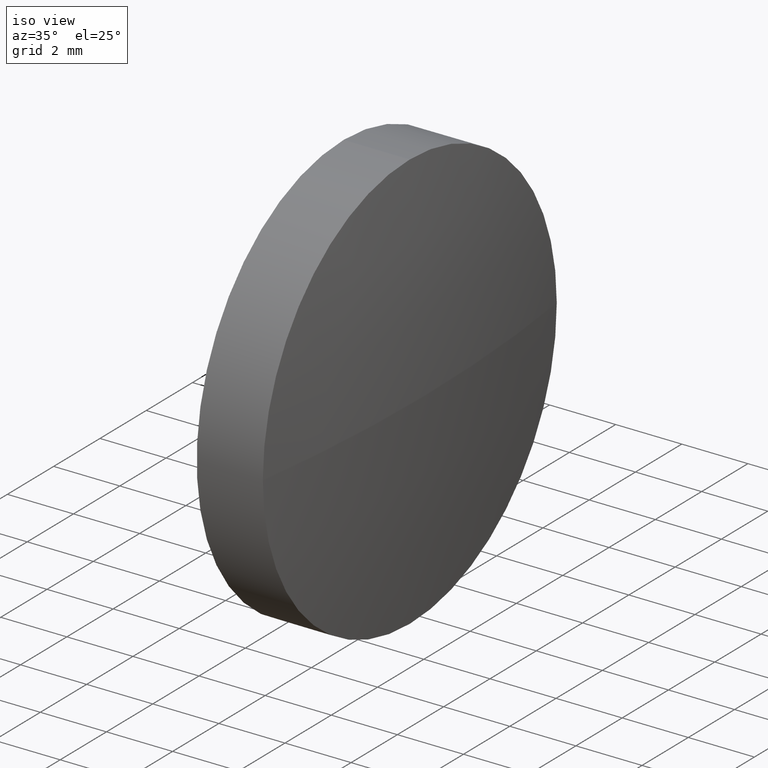
[diagram: clean part render]
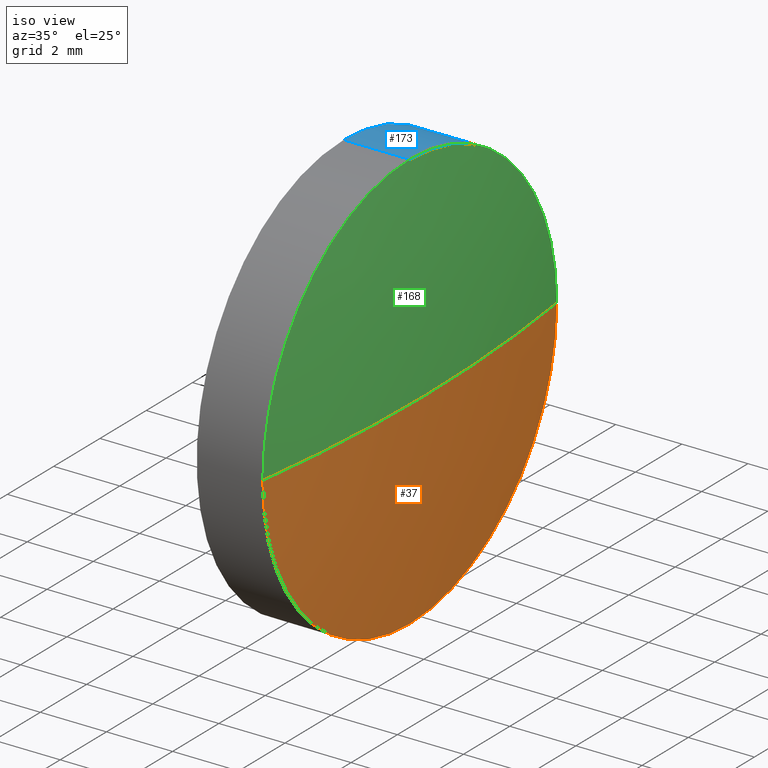
[diagram: same view with three faces highlighted in distinct colors, each labeled with its STEP entity id]
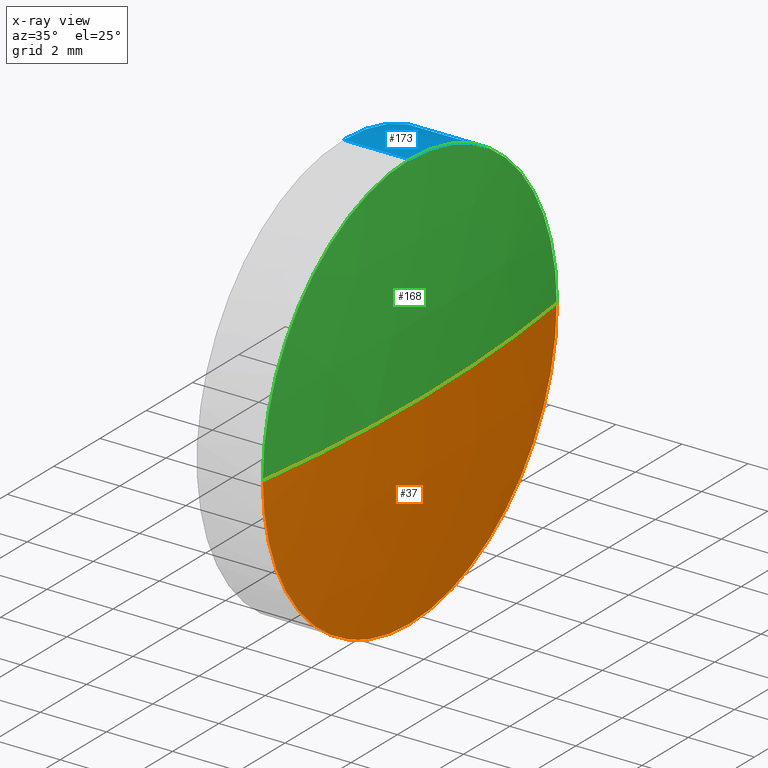
[diagram: x-ray of the same camera — body ghosted, the three highlighted faces saturated]
A machine part, iso view with three faces highlighted in distinct colors.
The next image is the same camera in x-ray (body ghosted, the three faces saturated) — at least one of them is partly hidden behind the body in this view.
Their STEP definitions:

[orange] entity #37 — the highlighted spherical surface has radius 46.041 mm.
#1 = DIRECTION ( 'NONE',  ( -0.0000000000000000000, 0.0000000000000000000, 1.000000000000000000 ) ) ;
#4 = AXIS2_PLACEMENT_3D ( 'NONE', #124, #61, #127 ) ;
#5 = DIRECTION ( 'NONE',  ( -1.000000000000000000, -0.0000000000000000000, -0.0000000000000000000 ) ) ;
#8 = AXIS2_PLACEMENT_3D ( 'NONE', #153, #1, #156 ) ;
#13 = SPHERICAL_SURFACE ( 'NONE', #4, 46.04102272727063600 ) ;
#15 = CARTESIAN_POINT ( 'NONE',  ( 504.8615574523524900, 33.36923278468605500, 0.0000000000000000000 ) ) ;
#16 = DIRECTION ( 'NONE',  ( -1.000000000000000000, -0.0000000000000000000, -0.0000000000000000000 ) ) ;
#19 = ORIENTED_EDGE ( 'NONE', *, *, #24, .F. ) ;
#24 = EDGE_CURVE ( 'NONE', #73, #90, #36, .T. ) ;
#36 = CIRCLE ( 'NONE', #42, 6.349999999999994300 ) ;
#37 = ADVANCED_FACE ( 'NONE', ( #140 ), #13, .T. ) ;
#42 = AXIS2_PLACEMENT_3D ( 'NONE', #96, #16, #163 ) ;
#48 = CARTESIAN_POINT ( 'NONE',  ( 459.2605347250818700, 27.01923278468606800, 0.0000000000000000000 ) ) ;
#56 = EDGE_CURVE ( 'NONE', #93, #90, #58, .T. ) ;
#58 = CIRCLE ( 'NONE', #118, 46.04102272727063600 ) ;
#60 = ORIENTED_EDGE ( 'NONE', *, *, #106, .F. ) ;
#61 = DIRECTION ( 'NONE',  ( -0.0000000000000000000, 0.0000000000000000000, -1.000000000000000000 ) ) ;
#63 = CARTESIAN_POINT ( 'NONE',  ( 504.8615574523524900, 27.01923278468612500, -6.349999999999994300 ) ) ;
#73 = VERTEX_POINT ( 'NONE', #63 ) ;
#77 = CARTESIAN_POINT ( 'NONE',  ( 504.8615574523524900, 20.66923278468613400, -7.776507174585607400E-016 ) ) ;
#90 = VERTEX_POINT ( 'NONE', #77 ) ;
#93 = VERTEX_POINT ( 'NONE', #100 ) ;
#95 = DIRECTION ( 'NONE',  ( 0.0000000000000000000, 1.224646799147353200E-016, -1.000000000000000000 ) ) ;
#96 = CARTESIAN_POINT ( 'NONE',  ( 504.8615574523524900, 27.01923278468612500, 0.0000000000000000000 ) ) ;
#100 = CARTESIAN_POINT ( 'NONE',  ( 505.3015574523524800, 27.01923278468607100, 0.0000000000000000000 ) ) ;
#106 = EDGE_CURVE ( 'NONE', #142, #73, #136, .T. ) ;
#118 = AXIS2_PLACEMENT_3D ( 'NONE', #48, #95, #175 ) ;
#124 = CARTESIAN_POINT ( 'NONE',  ( 459.2605347250818700, 27.01923278468606800, 0.0000000000000000000 ) ) ;
#127 = DIRECTION ( 'NONE',  ( 0.0000000000000000000, 1.000000000000000000, 0.0000000000000000000 ) ) ;
#132 = ORIENTED_EDGE ( 'NONE', *, *, #56, .T. ) ;
#136 = CIRCLE ( 'NONE', #185, 6.349999999999994300 ) ;
#140 = FACE_OUTER_BOUND ( 'NONE', #182, .T. ) ;
#142 = VERTEX_POINT ( 'NONE', #15 ) ;
#143 = CIRCLE ( 'NONE', #8, 46.04102272727062200 ) ;
#148 = ORIENTED_EDGE ( 'NONE', *, *, #172, .F. ) ;
#153 = CARTESIAN_POINT ( 'NONE',  ( 459.2605347250818700, 27.01923278468606800, 0.0000000000000000000 ) ) ;
#156 = DIRECTION ( 'NONE',  ( 1.000000000000000000, 0.0000000000000000000, 0.0000000000000000000 ) ) ;
#163 = DIRECTION ( 'NONE',  ( 0.0000000000000000000, 0.0000000000000000000, 1.000000000000000000 ) ) ;
#165 = DIRECTION ( 'NONE',  ( 0.0000000000000000000, 0.0000000000000000000, 1.000000000000000000 ) ) ;
#167 = CARTESIAN_POINT ( 'NONE',  ( 504.8615574523524900, 27.01923278468612500, 0.0000000000000000000 ) ) ;
#172 = EDGE_CURVE ( 'NONE', #93, #142, #143, .T. ) ;
#175 = DIRECTION ( 'NONE',  ( 0.0000000000000000000, 1.000000000000000000, 1.224646799147353200E-016 ) ) ;
#182 = EDGE_LOOP ( 'NONE', ( #148, #132, #19, #60 ) ) ;
#185 = AXIS2_PLACEMENT_3D ( 'NONE', #167, #5, #165 ) ;

[blue] entity #173 — the highlighted cylindrical surface (partial cylindrical patch) has radius 6.35 mm, axis along (-1, -0, -0).
#3 = DIRECTION ( 'NONE',  ( -1.000000000000000000, -0.0000000000000000000, -0.0000000000000000000 ) ) ;
#5 = DIRECTION ( 'NONE',  ( -1.000000000000000000, -0.0000000000000000000, -0.0000000000000000000 ) ) ;
#15 = CARTESIAN_POINT ( 'NONE',  ( 504.8615574523524900, 33.36923278468605500, 0.0000000000000000000 ) ) ;
#27 = CARTESIAN_POINT ( 'NONE',  ( 500.5335289623582800, 27.01923278468612500, -6.349999999999994300 ) ) ;
#33 = EDGE_CURVE ( 'NONE', #174, #51, #74, .T. ) ;
#39 = ORIENTED_EDGE ( 'NONE', *, *, #106, .T. ) ;
#40 = CIRCLE ( 'NONE', #108, 6.349999999999994300 ) ;
#47 = CARTESIAN_POINT ( 'NONE',  ( 504.8615574523524900, 27.01923278468612500, 6.349999999999994300 ) ) ;
#50 = DIRECTION ( 'NONE',  ( -1.000000000000000000, -0.0000000000000000000, -0.0000000000000000000 ) ) ;
#51 = VERTEX_POINT ( 'NONE', #112 ) ;
#53 = EDGE_CURVE ( 'NONE', #73, #101, #125, .T. ) ;
#63 = CARTESIAN_POINT ( 'NONE',  ( 504.8615574523524900, 27.01923278468612500, -6.349999999999994300 ) ) ;
#65 = DIRECTION ( 'NONE',  ( 0.0000000000000000000, 0.0000000000000000000, 1.000000000000000000 ) ) ;
#67 = DIRECTION ( 'NONE',  ( -1.000000000000000000, -0.0000000000000000000, -0.0000000000000000000 ) ) ;
#73 = VERTEX_POINT ( 'NONE', #63 ) ;
#74 = LINE ( 'NONE', #186, #87 ) ;
#79 = CARTESIAN_POINT ( 'NONE',  ( 502.8615574523524900, 27.01923278468612500, -6.349999999999994300 ) ) ;
#86 = EDGE_CURVE ( 'NONE', #51, #101, #40, .T. ) ;
#87 = VECTOR ( 'NONE', #110, 1000.000000000000000 ) ;
#91 = CYLINDRICAL_SURFACE ( 'NONE', #176, 6.349999999999994300 ) ;
#94 = CIRCLE ( 'NONE', #157, 6.349999999999994300 ) ;
#101 = VERTEX_POINT ( 'NONE', #79 ) ;
#102 = EDGE_CURVE ( 'NONE', #174, #142, #94, .T. ) ;
#103 = VECTOR ( 'NONE', #152, 1000.000000000000000 ) ;
#106 = EDGE_CURVE ( 'NONE', #142, #73, #136, .T. ) ;
#108 = AXIS2_PLACEMENT_3D ( 'NONE', #151, #3, #114 ) ;
#110 = DIRECTION ( 'NONE',  ( -1.000000000000000000, -0.0000000000000000000, -0.0000000000000000000 ) ) ;
#112 = CARTESIAN_POINT ( 'NONE',  ( 502.8615574523524900, 27.01923278468612500, 6.349999999999994300 ) ) ;
#114 = DIRECTION ( 'NONE',  ( 0.0000000000000000000, 0.0000000000000000000, 1.000000000000000000 ) ) ;
#117 = ORIENTED_EDGE ( 'NONE', *, *, #86, .F. ) ;
#125 = LINE ( 'NONE', #27, #103 ) ;
#128 = CARTESIAN_POINT ( 'NONE',  ( 500.5335289623582800, 27.01923278468612500, 0.0000000000000000000 ) ) ;
#129 = CARTESIAN_POINT ( 'NONE',  ( 504.8615574523524900, 27.01923278468612500, 0.0000000000000000000 ) ) ;
#131 = DIRECTION ( 'NONE',  ( 0.0000000000000000000, 0.0000000000000000000, 1.000000000000000000 ) ) ;
#136 = CIRCLE ( 'NONE', #185, 6.349999999999994300 ) ;
#139 = ORIENTED_EDGE ( 'NONE', *, *, #33, .F. ) ;
#142 = VERTEX_POINT ( 'NONE', #15 ) ;
#151 = CARTESIAN_POINT ( 'NONE',  ( 502.8615574523524900, 27.01923278468612500, 0.0000000000000000000 ) ) ;
#152 = DIRECTION ( 'NONE',  ( -1.000000000000000000, -0.0000000000000000000, -0.0000000000000000000 ) ) ;
#157 = AXIS2_PLACEMENT_3D ( 'NONE', #129, #67, #65 ) ;
#158 = EDGE_LOOP ( 'NONE', ( #39, #161, #117, #139, #184 ) ) ;
#161 = ORIENTED_EDGE ( 'NONE', *, *, #53, .T. ) ;
#165 = DIRECTION ( 'NONE',  ( 0.0000000000000000000, 0.0000000000000000000, 1.000000000000000000 ) ) ;
#167 = CARTESIAN_POINT ( 'NONE',  ( 504.8615574523524900, 27.01923278468612500, 0.0000000000000000000 ) ) ;
#171 = FACE_OUTER_BOUND ( 'NONE', #158, .T. ) ;
#173 = ADVANCED_FACE ( 'NONE', ( #171 ), #91, .T. ) ;
#174 = VERTEX_POINT ( 'NONE', #47 ) ;
#176 = AXIS2_PLACEMENT_3D ( 'NONE', #128, #50, #131 ) ;
#184 = ORIENTED_EDGE ( 'NONE', *, *, #102, .T. ) ;
#185 = AXIS2_PLACEMENT_3D ( 'NONE', #167, #5, #165 ) ;
#186 = CARTESIAN_POINT ( 'NONE',  ( 500.5335289623582800, 27.01923278468612500, 6.349999999999994300 ) ) ;

[green] entity #168 — the highlighted spherical surface has radius 46.041 mm.
#1 = DIRECTION ( 'NONE',  ( -0.0000000000000000000, 0.0000000000000000000, 1.000000000000000000 ) ) ;
#6 = ORIENTED_EDGE ( 'NONE', *, *, #56, .F. ) ;
#8 = AXIS2_PLACEMENT_3D ( 'NONE', #153, #1, #156 ) ;
#9 = ORIENTED_EDGE ( 'NONE', *, *, #102, .F. ) ;
#11 = CIRCLE ( 'NONE', #120, 6.349999999999994300 ) ;
#12 = EDGE_LOOP ( 'NONE', ( #6, #146, #9, #85 ) ) ;
#15 = CARTESIAN_POINT ( 'NONE',  ( 504.8615574523524900, 33.36923278468605500, 0.0000000000000000000 ) ) ;
#21 = SPHERICAL_SURFACE ( 'NONE', #183, 46.04102272727063600 ) ;
#47 = CARTESIAN_POINT ( 'NONE',  ( 504.8615574523524900, 27.01923278468612500, 6.349999999999994300 ) ) ;
#48 = CARTESIAN_POINT ( 'NONE',  ( 459.2605347250818700, 27.01923278468606800, 0.0000000000000000000 ) ) ;
#56 = EDGE_CURVE ( 'NONE', #93, #90, #58, .T. ) ;
#58 = CIRCLE ( 'NONE', #118, 46.04102272727063600 ) ;
#65 = DIRECTION ( 'NONE',  ( 0.0000000000000000000, 0.0000000000000000000, 1.000000000000000000 ) ) ;
#67 = DIRECTION ( 'NONE',  ( -1.000000000000000000, -0.0000000000000000000, -0.0000000000000000000 ) ) ;
#77 = CARTESIAN_POINT ( 'NONE',  ( 504.8615574523524900, 20.66923278468613400, -7.776507174585607400E-016 ) ) ;
#82 = DIRECTION ( 'NONE',  ( 0.0000000000000000000, 0.0000000000000000000, 1.000000000000000000 ) ) ;
#85 = ORIENTED_EDGE ( 'NONE', *, *, #89, .F. ) ;
#89 = EDGE_CURVE ( 'NONE', #90, #174, #11, .T. ) ;
#90 = VERTEX_POINT ( 'NONE', #77 ) ;
#93 = VERTEX_POINT ( 'NONE', #100 ) ;
#94 = CIRCLE ( 'NONE', #157, 6.349999999999994300 ) ;
#95 = DIRECTION ( 'NONE',  ( 0.0000000000000000000, 1.224646799147353200E-016, -1.000000000000000000 ) ) ;
#98 = DIRECTION ( 'NONE',  ( -1.000000000000000000, -0.0000000000000000000, -0.0000000000000000000 ) ) ;
#100 = CARTESIAN_POINT ( 'NONE',  ( 505.3015574523524800, 27.01923278468607100, 0.0000000000000000000 ) ) ;
#102 = EDGE_CURVE ( 'NONE', #174, #142, #94, .T. ) ;
#118 = AXIS2_PLACEMENT_3D ( 'NONE', #48, #95, #175 ) ;
#120 = AXIS2_PLACEMENT_3D ( 'NONE', #178, #98, #82 ) ;
#129 = CARTESIAN_POINT ( 'NONE',  ( 504.8615574523524900, 27.01923278468612500, 0.0000000000000000000 ) ) ;
#134 = CARTESIAN_POINT ( 'NONE',  ( 459.2605347250818700, 27.01923278468606800, 0.0000000000000000000 ) ) ;
#135 = FACE_OUTER_BOUND ( 'NONE', #12, .T. ) ;
#142 = VERTEX_POINT ( 'NONE', #15 ) ;
#143 = CIRCLE ( 'NONE', #8, 46.04102272727062200 ) ;
#145 = DIRECTION ( 'NONE',  ( 0.0000000000000000000, 1.000000000000000000, 0.0000000000000000000 ) ) ;
#146 = ORIENTED_EDGE ( 'NONE', *, *, #172, .T. ) ;
#153 = CARTESIAN_POINT ( 'NONE',  ( 459.2605347250818700, 27.01923278468606800, 0.0000000000000000000 ) ) ;
#155 = DIRECTION ( 'NONE',  ( -0.0000000000000000000, 0.0000000000000000000, -1.000000000000000000 ) ) ;
#156 = DIRECTION ( 'NONE',  ( 1.000000000000000000, 0.0000000000000000000, 0.0000000000000000000 ) ) ;
#157 = AXIS2_PLACEMENT_3D ( 'NONE', #129, #67, #65 ) ;
#168 = ADVANCED_FACE ( 'NONE', ( #135 ), #21, .T. ) ;
#172 = EDGE_CURVE ( 'NONE', #93, #142, #143, .T. ) ;
#174 = VERTEX_POINT ( 'NONE', #47 ) ;
#175 = DIRECTION ( 'NONE',  ( 0.0000000000000000000, 1.000000000000000000, 1.224646799147353200E-016 ) ) ;
#178 = CARTESIAN_POINT ( 'NONE',  ( 504.8615574523524900, 27.01923278468612500, 0.0000000000000000000 ) ) ;
#183 = AXIS2_PLACEMENT_3D ( 'NONE', #134, #155, #145 ) ;